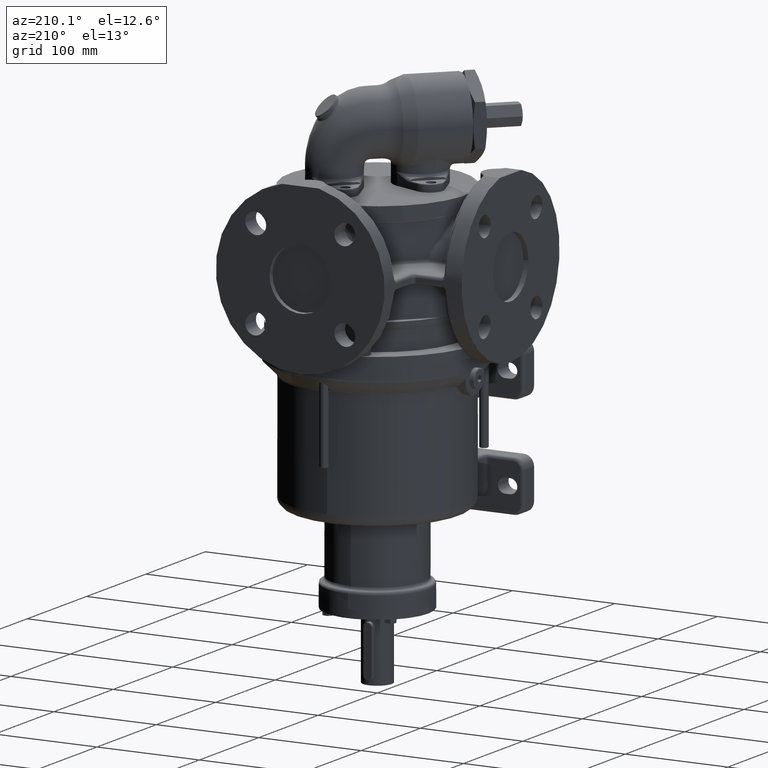
[diagram: clean part render]
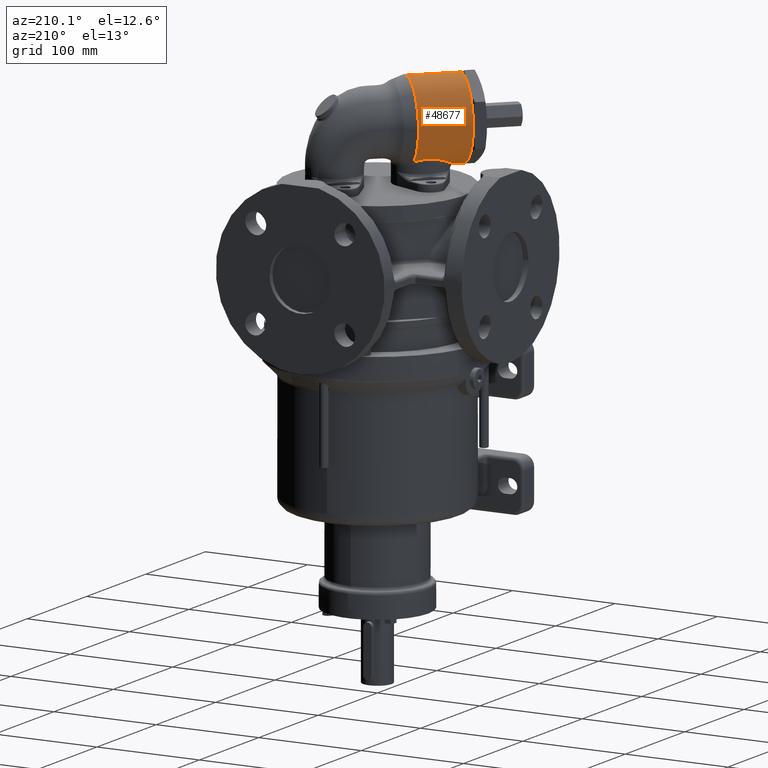
[diagram: same view with one face highlighted and labeled with its STEP entity id]
A machine part, auxiliary view. The second image highlights one B-rep face of the part: STEP entity #48677.
In plain terms, the highlighted cylindrical surface (partial cylindrical patch) has radius 39 mm, axis along (-0.7071, -0.7071, 0).
Its self-contained STEP definition (entity closure, byte-faithful):
#17448=CARTESIAN_POINT('',(-3.496280509129E1,-1.099640749220E0,
1.607161885047E2));
#17528=CARTESIAN_POINT('',(-5.197234841721E1,-5.197234841721E1,1.915E2));
#17529=DIRECTION('',(-7.071067811865E-1,-7.071067811865E-1,0.E0));
#17530=DIRECTION('',(0.E0,0.E0,1.E0));
#17531=AXIS2_PLACEMENT_3D('',#17528,#17529,#17530);
#17533=DIRECTION('',(-7.071067811865E-1,-7.071067811865E-1,
-2.940469455228E-10));
#17534=VECTOR('',#17533,7.E0);
#17535=CARTESIAN_POINT('',(-4.702260094891E1,-4.702260094891E1,
1.525000000021E2));
#17536=LINE('',#17535,#17534);
#17537=CARTESIAN_POINT('',(-4.702260094891E1,-4.702260094891E1,
1.525000000021E2));
#17538=CARTESIAN_POINT('',(-4.717351506242E1,-4.687168664974E1,
1.525000000333E2));
#17539=CARTESIAN_POINT('',(-4.747143978388E1,-4.656566153128E1,
1.525035037302E2));
#17540=CARTESIAN_POINT('',(-4.790648524140E1,-4.609408123038E1,
1.525193023275E2));
#17541=CARTESIAN_POINT('',(-4.832942183539E1,-4.561013742493E1,
1.525456657847E2));
#17542=CARTESIAN_POINT('',(-4.874012413113E1,-4.511384756688E1,
1.525826156200E2));
#17543=CARTESIAN_POINT('',(-4.913863687054E1,-4.460496098095E1,
1.526302031492E2));
#17544=CARTESIAN_POINT('',(-4.952482811428E1,-4.408337890634E1,
1.526884803299E2));
#17545=CARTESIAN_POINT('',(-4.989856919899E1,-4.354894410063E1,
1.527575104124E2));
#17546=CARTESIAN_POINT('',(-5.025970031949E1,-4.300147411011E1,
1.528373675340E2));
#17547=CARTESIAN_POINT('',(-5.060801252773E1,-4.244079163914E1,
1.529281307260E2));
#17548=CARTESIAN_POINT('',(-5.094326164621E1,-4.186670754986E1,
1.530298847238E2));
#17549=CARTESIAN_POINT('',(-5.126515975836E1,-4.127903139542E1,
1.531427165078E2));
#17550=CARTESIAN_POINT('',(-5.157337496513E1,-4.067757474513E1,
1.532667124787E2));
#17551=CARTESIAN_POINT('',(-5.186753103814E1,-4.006215573191E1,
1.534019552212E2));
#17552=CARTESIAN_POINT('',(-5.214720699121E1,-3.943260483271E1,
1.535485196013E2));
#17553=CARTESIAN_POINT('',(-5.241193479163E1,-3.878877058053E1,
1.537064679882E2));
#17554=CARTESIAN_POINT('',(-5.266119957831E1,-3.813052650767E1,
1.538758449835E2));
#17555=CARTESIAN_POINT('',(-5.289444101404E1,-3.745777876199E1,
1.540566715912E2));
#17556=CARTESIAN_POINT('',(-5.311105367378E1,-3.677047568931E1,
1.542489380669E2));
#17557=CARTESIAN_POINT('',(-5.331038781530E1,-3.606861756918E1,
1.544525958503E2));
#17558=CARTESIAN_POINT('',(-5.349175289046E1,-3.535226739558E1,
1.546675489116E2));
#17559=CARTESIAN_POINT('',(-5.365442300135E1,-3.462156286531E1,
1.548936444163E2));
#17560=CARTESIAN_POINT('',(-5.379764050334E1,-3.387673346060E1,
1.551306605630E2));
#17561=CARTESIAN_POINT('',(-5.392062404250E1,-3.311811388658E1,
1.553782951974E2));
#17562=CARTESIAN_POINT('',(-5.402257917108E1,-3.234615916202E1,
1.556361538326E2));
#17563=CARTESIAN_POINT('',(-5.410271208841E1,-3.156146155261E1,
1.559037373044E2));
#17564=CARTESIAN_POINT('',(-5.416024189628E1,-3.076477494871E1,
1.561804256971E2));
#17565=CARTESIAN_POINT('',(-5.419442107658E1,-2.995702606522E1,
1.564654682009E2));
#17566=CARTESIAN_POINT('',(-5.420455752504E1,-2.913932709211E1,
1.567579735989E2));
#17567=CARTESIAN_POINT('',(-5.419004030445E1,-2.831298902459E1,
1.570569026283E2));
#17568=CARTESIAN_POINT('',(-5.415036320328E1,-2.747953648830E1,
1.573610599593E2));
#17569=CARTESIAN_POINT('',(-5.408515511606E1,-2.664069491035E1,
1.576691012659E2));
#17570=CARTESIAN_POINT('',(-5.399420697050E1,-2.579837769878E1,
1.579795434848E2));
#17571=CARTESIAN_POINT('',(-5.387749798502E1,-2.495466836041E1,
1.582907814625E2));
#17572=CARTESIAN_POINT('',(-5.373521025090E1,-2.411178523940E1,
1.586011122766E2));
#17573=CARTESIAN_POINT('',(-5.356774125746E1,-2.327202162544E1,
1.589087759970E2));
#17574=CARTESIAN_POINT('',(-5.337570448168E1,-2.243769161856E1,
1.592119958949E2));
#17575=CARTESIAN_POINT('',(-5.315991972381E1,-2.161106732639E1,
1.595090238378E2));
#17576=CARTESIAN_POINT('',(-5.292138138315E1,-2.079429985249E1,
1.597981882482E2));
#17577=CARTESIAN_POINT('',(-5.266122867593E1,-1.998935817636E1,
1.600779381522E2));
#17578=CARTESIAN_POINT('',(-5.238070644171E1,-1.919798436442E1,
1.603468757139E2));
#17579=CARTESIAN_POINT('',(-5.208111730941E1,-1.842164912018E1,
1.606037833254E2));
#17580=CARTESIAN_POINT('',(-5.176377053956E1,-1.766152427899E1,
1.608476376159E2));
#17581=CARTESIAN_POINT('',(-5.142994700938E1,-1.691848626802E1,
1.610776112562E2));
#17582=CARTESIAN_POINT('',(-5.108086009347E1,-1.619312103388E1,
1.612930666286E2));
#17583=CARTESIAN_POINT('',(-5.071762368933E1,-1.548574131498E1,
1.614935413035E2));
#17584=CARTESIAN_POINT('',(-5.034123128922E1,-1.479641882837E1,
1.616787260587E2));
#17585=CARTESIAN_POINT('',(-4.995254781921E1,-1.412502535769E1,
1.618484403854E2));
#17586=CARTESIAN_POINT('',(-4.955230158299E1,-1.347126700231E1,
1.620026082489E2));
#17587=CARTESIAN_POINT('',(-4.914108182576E1,-1.283471840995E1,
1.621412343035E2));
#17588=CARTESIAN_POINT('',(-4.871933877979E1,-1.221485256285E1,
1.622643822248E2));
#17589=CARTESIAN_POINT('',(-4.828739120909E1,-1.161107147016E1,
1.623721557905E2));
#17590=CARTESIAN_POINT('',(-4.784543310750E1,-1.102273368834E1,
1.624646806827E2));
#17591=CARTESIAN_POINT('',(-4.739354102434E1,-1.044917608568E1,
1.625420900454E2));
#17592=CARTESIAN_POINT('',(-4.693168210594E1,-9.889732731150E0,
1.626045125050E2));
#17593=CARTESIAN_POINT('',(-4.645972273901E1,-9.343751073847E0,
1.626520627673E2));
#17594=CARTESIAN_POINT('',(-4.597743817418E1,-8.810604363945E0,
1.626848359460E2));
#17595=CARTESIAN_POINT('',(-4.548451900473E1,-8.289703844263E0,
1.627029008304E2));
#17596=CARTESIAN_POINT('',(-4.498057902675E1,-7.780508802295E0,
1.627062963006E2));
#17597=CARTESIAN_POINT('',(-4.446516316601E1,-7.282535574015E0,
1.626950294220E2));
#17598=CARTESIAN_POINT('',(-4.393775557448E1,-6.795366017354E0,
1.626690749782E2));
#17599=CARTESIAN_POINT('',(-4.339778916768E1,-6.318653955816E0,
1.626283782276E2));
#17600=CARTESIAN_POINT('',(-4.284465412375E1,-5.852133869758E0,
1.625728564973E2));
#17601=CARTESIAN_POINT('',(-4.227770831543E1,-5.395629201383E0,
1.625024032119E2));
#17602=CARTESIAN_POINT('',(-4.169629020085E1,-4.949060519331E0,
1.624168944562E2));
#17603=CARTESIAN_POINT('',(-4.109973354071E1,-4.512453877848E0,
1.623161973325E2));
#17604=CARTESIAN_POINT('',(-4.048738356765E1,-4.085946654447E0,
1.622001814133E2));
#17605=CARTESIAN_POINT('',(-3.985862297653E1,-3.669800474185E0,
1.620687322210E2));
#17606=CARTESIAN_POINT('',(-3.921288865151E1,-3.264404210794E0,
1.619217651564E2));
#17607=CARTESIAN_POINT('',(-3.854970540553E1,-2.870283577997E0,
1.617592455158E2));
#17608=CARTESIAN_POINT('',(-3.786871839068E1,-2.488103837479E0,
1.615812106519E2));
#17609=CARTESIAN_POINT('',(-3.716969636051E1,-2.118655335342E0,
1.613877838588E2));
#17610=CARTESIAN_POINT('',(-3.645264209607E1,-1.762885987691E0,
1.611792203726E2));
#17611=CARTESIAN_POINT('',(-3.571773030112E1,-1.421852548574E0,
1.609558991232E2));
#17612=CARTESIAN_POINT('',(-3.521643209362E1,-1.205194998498E0,
1.607976308704E2));
#17613=CARTESIAN_POINT('',(-3.496280509129E1,-1.099640749220E0,
1.607161885047E2));
#17615=CARTESIAN_POINT('',(-1.803122292026E1,-1.803122292026E1,1.915E2));
#17616=DIRECTION('',(7.071067811865E-1,7.071067811865E-1,0.E0));
#17617=DIRECTION('',(-4.341431326185E-1,4.341431326185E-1,-7.893284999292E-1));
#17618=AXIS2_PLACEMENT_3D('',#17615,#17616,#17617);
#17620=DIRECTION('',(-7.071067811865E-1,-7.071067811865E-1,0.E0));
#17621=VECTOR('',#17620,4.8E1);
#17622=CARTESIAN_POINT('',(-1.803122292026E1,-1.803122292026E1,2.305E2));
#17623=LINE('',#17622,#17621);
#17720=CARTESIAN_POINT('',(-4.702260094891E1,-4.702260094891E1,
1.525000000021E2));
#23169=VERTEX_POINT('',#17448);
#23178=VERTEX_POINT('',#17720);
#23179=CARTESIAN_POINT('',(-1.803122292026E1,-1.803122292026E1,2.305E2));
#23180=VERTEX_POINT('',#23179);
#23189=CARTESIAN_POINT('',(-5.197234841721E1,-5.197234841721E1,1.525E2));
#23190=CARTESIAN_POINT('',(-5.197234841721E1,-5.197234841721E1,2.305E2));
#23191=VERTEX_POINT('',#23189);
#23192=VERTEX_POINT('',#23190);
#48662=CARTESIAN_POINT('',(9.015611460128E0,9.015611460128E0,1.915E2));
#48663=DIRECTION('',(-7.071067811865E-1,-7.071067811865E-1,0.E0));
#48664=DIRECTION('',(0.E0,0.E0,-1.E0));
#48665=AXIS2_PLACEMENT_3D('',#48662,#48663,#48664);
#48666=CYLINDRICAL_SURFACE('',#48665,3.9E1);
#48668=ORIENTED_EDGE('',*,*,#48667,.T.);
#48670=ORIENTED_EDGE('',*,*,#48669,.F.);
#48671=ORIENTED_EDGE('',*,*,#48653,.T.);
#48672=ORIENTED_EDGE('',*,*,#48290,.T.);
#48674=ORIENTED_EDGE('',*,*,#48673,.T.);
#48675=EDGE_LOOP('',(#48668,#48670,#48671,#48672,#48674));
#48676=FACE_OUTER_BOUND('',#48675,.F.);
#48677=ADVANCED_FACE('',(#48676),#48666,.T.);
#17532=CIRCLE('',#17531,3.9E1);
#17614=B_SPLINE_CURVE_WITH_KNOTS('',3,(#17537,#17538,#17539,#17540,#17541,
#17542,#17543,#17544,#17545,#17546,#17547,#17548,#17549,#17550,#17551,#17552,
#17553,#17554,#17555,#17556,#17557,#17558,#17559,#17560,#17561,#17562,#17563,
#17564,#17565,#17566,#17567,#17568,#17569,#17570,#17571,#17572,#17573,#17574,
#17575,#17576,#17577,#17578,#17579,#17580,#17581,#17582,#17583,#17584,#17585,
#17586,#17587,#17588,#17589,#17590,#17591,#17592,#17593,#17594,#17595,#17596,
#17597,#17598,#17599,#17600,#17601,#17602,#17603,#17604,#17605,#17606,#17607,
#17608,#17609,#17610,#17611,#17612,#17613),.UNSPECIFIED.,.F.,.F.,(4,1,1,1,1,1,1,
1,1,1,1,1,1,1,1,1,1,1,1,1,1,1,1,1,1,1,1,1,1,1,1,1,1,1,1,1,1,1,1,1,1,1,1,1,1,1,1,
1,1,1,1,1,1,1,1,1,1,1,1,1,1,1,1,1,1,1,1,1,1,1,1,1,1,1,4),(0.E0,
1.351351351351E-2,2.702702702703E-2,4.054054054054E-2,5.405405405405E-2,
6.756756756757E-2,8.108108108108E-2,9.459459459459E-2,1.081081081081E-1,
1.216216216216E-1,1.351351351351E-1,1.486486486486E-1,1.621621621622E-1,
1.756756756757E-1,1.891891891892E-1,2.027027027027E-1,2.162162162162E-1,
2.297297297297E-1,2.432432432432E-1,2.567567567568E-1,2.702702702703E-1,
2.837837837838E-1,2.972972972973E-1,3.108108108108E-1,3.243243243243E-1,
3.378378378378E-1,3.513513513514E-1,3.648648648649E-1,3.783783783784E-1,
3.918918918919E-1,4.054054054054E-1,4.189189189189E-1,4.324324324324E-1,
4.459459459459E-1,4.594594594595E-1,4.729729729730E-1,4.864864864865E-1,5.E-1,
5.135135135135E-1,5.270270270270E-1,5.405405405405E-1,5.540540540541E-1,
5.675675675676E-1,5.810810810811E-1,5.945945945946E-1,6.081081081081E-1,
6.216216216216E-1,6.351351351351E-1,6.486486486486E-1,6.621621621622E-1,
6.756756756757E-1,6.891891891892E-1,7.027027027027E-1,7.162162162162E-1,
7.297297297297E-1,7.432432432432E-1,7.567567567568E-1,7.702702702703E-1,
7.837837837838E-1,7.972972972973E-1,8.108108108108E-1,8.243243243243E-1,
8.378378378378E-1,8.513513513514E-1,8.648648648649E-1,8.783783783784E-1,
8.918918918919E-1,9.054054054054E-1,9.189189189189E-1,9.324324324324E-1,
9.459459459459E-1,9.594594594595E-1,9.729729729730E-1,9.864864864865E-1,1.E0),
.UNSPECIFIED.);
#17619=CIRCLE('',#17618,3.9E1);
#48290=EDGE_CURVE('',#23169,#23180,#17619,.T.);
#48653=EDGE_CURVE('',#23178,#23169,#17614,.T.);
#48667=EDGE_CURVE('',#23192,#23191,#17532,.T.);
#48669=EDGE_CURVE('',#23178,#23191,#17536,.T.);
#48673=EDGE_CURVE('',#23180,#23192,#17623,.T.);